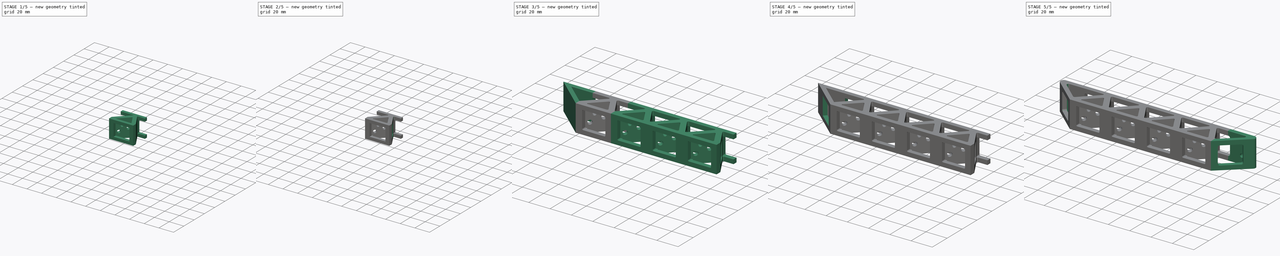
[diagram: build sequence overview — one tinted view per stage of 5, left to right]
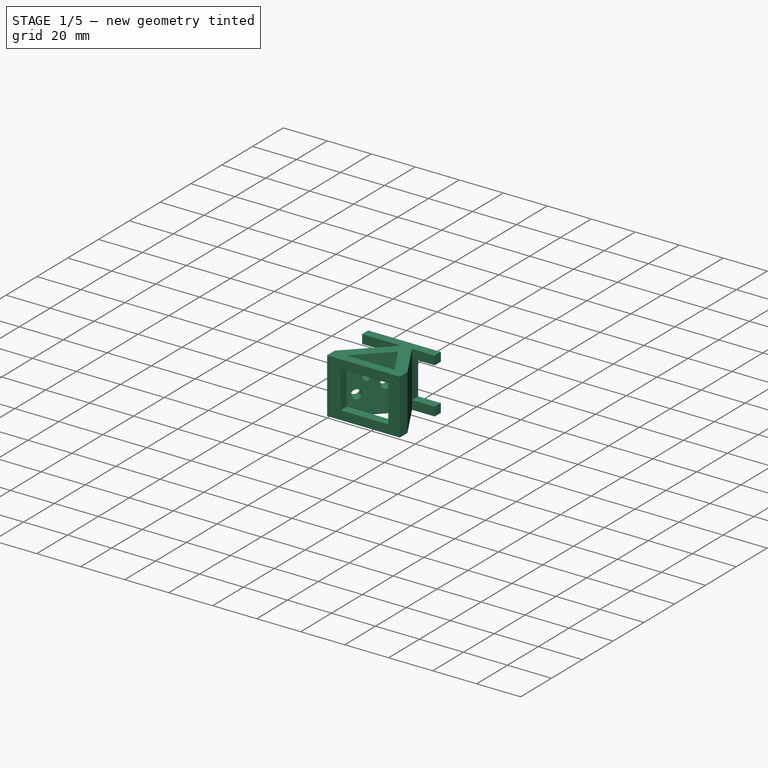
[diagram: stage 1 of 5 — iso view after this stage's code; geometry added in this stage tinted green]
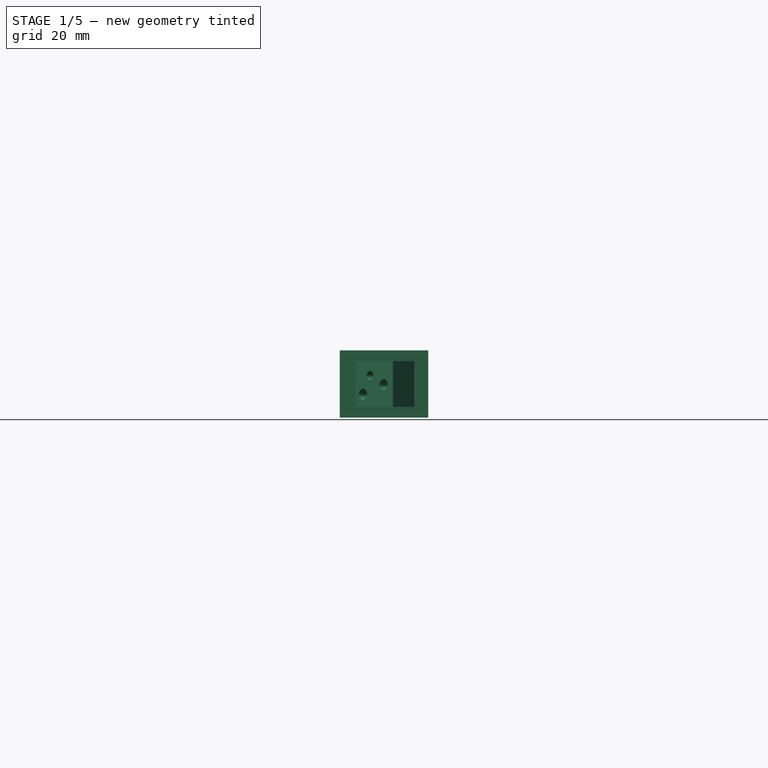
[diagram: stage 1 of 5 — front view after this stage's code; geometry added in this stage tinted green]
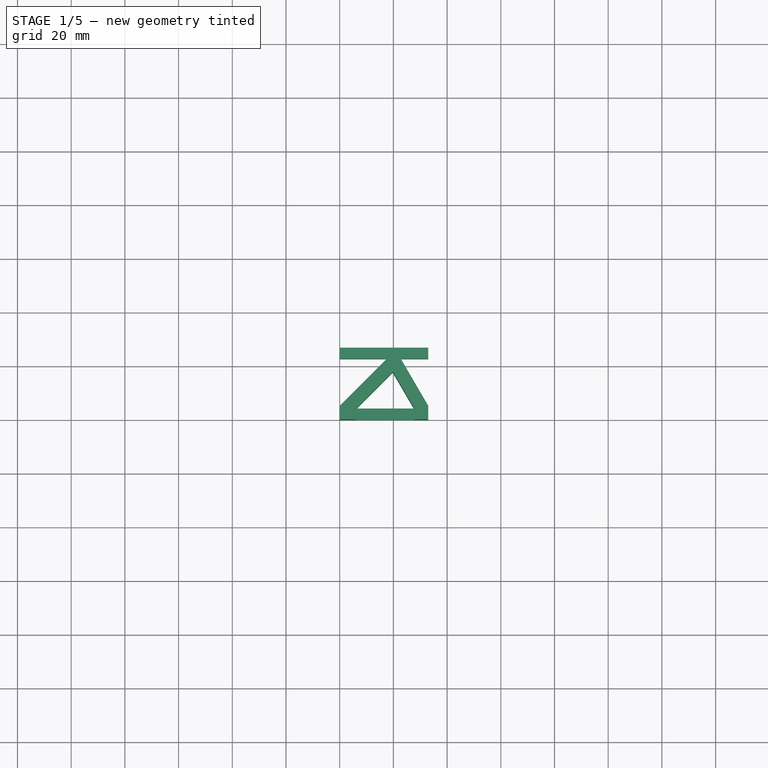
[diagram: stage 1 of 5 — top view after this stage's code; geometry added in this stage tinted green]
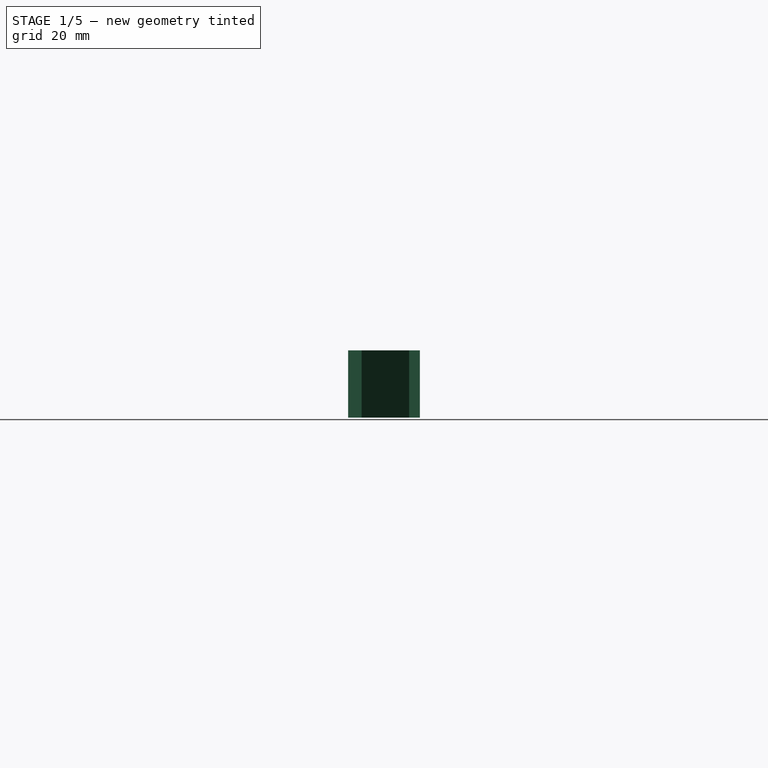
[diagram: stage 1 of 5 — right view after this stage's code; geometry added in this stage tinted green]
FCSTD DOCUMENT  (FreeCAD 0.19R)
Label: hori_stem
License: All rights reserved
LicenseURL: http://en.wikipedia.org/wiki/All_rights_reserved
objects: Sketcher::SketchObject×12, PartDesign::Pocket×6, PartDesign::Pad×5, PartDesign::Fillet×5, PartDesign::Hole×2, PartDesign::Chamfer×2, PartDesign::LinearPattern×2, PartDesign::Plane×1, PartDesign::Mirrored×1, PartDesign::Body×1
note: 57 computed .brp shape members not serialized (recipe doc carries the construction recipe); baked Part::Feature solids carry a one-line shape summary decoded from their .brp

FEATURE [Sketcher::SketchObject] Sketch  label="connector_base_sk"
  FullyConstrained = true
  MapMode = 5
  Support = -> [XY_Plane]
  sketch-geometry (13):
    g0: LineSegment StartX=0 StartY=5 StartZ=0 EndX=17.6777 EndY=22.6777 EndZ=0
    g1: LineSegment StartX=22.6777 StartY=22.6777 StartZ=0 EndX=33 EndY=5 EndZ=0
    g2: LineSegment StartX=6.07107 StartY=4 StartZ=0 EndX=19.7857 EndY=17.7146 EndZ=0
    g3: LineSegment StartX=19.7857 StartY=17.7146 StartZ=0 EndX=27.7939 EndY=4 EndZ=0
    g4: LineSegment StartX=33 StartY=0 StartZ=0 EndX=33 EndY=5 EndZ=0
    g5: LineSegment StartX=0 StartY=5 StartZ=0 EndX=0 EndY=0 EndZ=0
    g6: LineSegment StartX=6.07107 StartY=4 StartZ=0 EndX=27.7939 EndY=4 EndZ=0
    g7: LineSegment StartX=33 StartY=0 StartZ=0 EndX=0 EndY=0 EndZ=0
    g8: LineSegment StartX=0 StartY=26.6777 StartZ=0 EndX=33 EndY=26.6777 EndZ=0
    g9: LineSegment StartX=33 StartY=26.6777 StartZ=0 EndX=33 EndY=22.6777 EndZ=0
    g10: LineSegment StartX=33 StartY=22.6777 StartZ=0 EndX=22.6777 EndY=22.6777 EndZ=0
    g11: LineSegment StartX=0 StartY=22.6777 StartZ=0 EndX=0 EndY=26.6777 EndZ=0
    g12: LineSegment StartX=17.6777 StartY=22.6777 StartZ=0 EndX=0 EndY=22.6777 EndZ=0
  constraints (38):
    c: PointOnObject(g5,g-2)
    c: Coincident(g3,g2)
    c: Coincident(g5,g0)
    c: Vertical(g4)
    c: Parallel(g2,g0)
    c: Parallel(g3,g1)
    c: Vertical(g5)
    c: PointOnObject(g4,g-1)
    c: PointOnObject(g5,g-1)
    c: Coincident(g4,g1)
    c: Angle(g-1,g2) = 0.785398
    c: DistanceX(g5,g4) = 33
    c: Horizontal(g1,g0)
    c: Horizontal(g6)
    c: Coincident(g7,g4)
    c: Coincident(g7,g5)
    c: Distance(g6,g7) = 4
    c: Coincident(g3,g6)
    c: Coincident(g2,g6)
    c: Distance(g2,g0) = 5
    c: Distance(g3,g1) = 5
    c: Distance(g5) = 5
    c: Coincident(g8,g9)
    c: Coincident(g9,g10)
    c: Coincident(g12,g11)
    c: Coincident(g11,g8)
    c: Horizontal(g8)
    c: Horizontal(g10)
    c: Vertical(g9)
    c: Vertical(g11)
    c: PointOnObject(g8,g-2)
    c: Distance(g11) = 4
    c: Vertical(g9,g1)
    c: Distance(g0) = 25
    c: Coincident(g10,g1)
    c: Coincident(g12,g0)
    c: Tangent(g10,g12)
    c: Distance(g1,g0) = 5
FEATURE [PartDesign::Pad] Pad  label="connector_base"
  Direction = (1,1,1)
  Length = 25
  Length2 = 17
  Midplane = true
  Profile = -> Sketch
  Type = 0
FEATURE [Sketcher::SketchObject] Sketch007  label="back_stiffener_sk"
  ExternalGeometry = -> [Pad]
  FullyConstrained = true
  MapMode = 5
  Placement = pos=(0,4,0) rot=(0,0.707107,0.707107;3.14159rad)
  Support = -> [Pad]
  sketch-geometry (4):
    g0: LineSegment StartX=-6.07107 StartY=8.5 StartZ=0 EndX=-27.7939 EndY=8.5 EndZ=0
    g1: LineSegment StartX=-27.7939 StartY=8.5 StartZ=0 EndX=-27.7939 EndY=-8.5 EndZ=0
    g2: LineSegment StartX=-27.7939 StartY=-8.5 StartZ=0 EndX=-6.07107 EndY=-8.5 EndZ=0
    g3: LineSegment StartX=-6.07107 StartY=-8.5 StartZ=0 EndX=-6.07107 EndY=8.5 EndZ=0
  constraints (12):
    c: Coincident(g0,g1)
    c: Coincident(g1,g2)
    c: Coincident(g2,g3)
    c: Coincident(g3,g0)
    c: Horizontal(g0)
    c: Horizontal(g2)
    c: Vertical(g1)
    c: Vertical(g3)
    c: PointOnObject(g0,g-4)
    c: PointOnObject(g1,g-3)
    c: Distance(g-3,g2) = 4
    c: Distance(g-4,g0) = 4
FEATURE [PartDesign::Pocket] Pocket002  label="back_stiffener"
  BaseFeature = -> Pad
  Length = 5
  Length2 = 100
  Profile = -> Sketch007
  Type = 2
FEATURE [Sketcher::SketchObject] Sketch008  label="front_stiffener_sk"
  ExternalGeometry = -> [Pocket002]
  FullyConstrained = true
  MapMode = 5
  Placement = pos=(0,22.6777,0) rot=(1,0,0;1.5708rad)
  Support = -> [Pocket002]
  sketch-geometry (8):
    g0: LineSegment StartX=0 StartY=8.5 StartZ=0 EndX=17.6777 EndY=8.5 EndZ=0
    g1: LineSegment StartX=17.6777 StartY=8.5 StartZ=0 EndX=17.6777 EndY=-8.5 EndZ=0
    g2: LineSegment StartX=17.6777 StartY=-8.5 StartZ=0 EndX=0 EndY=-8.5 EndZ=0
    g3: LineSegment StartX=0 StartY=-8.5 StartZ=0 EndX=0 EndY=8.5 EndZ=0
    g4: LineSegment StartX=22.6777 StartY=-8.5 StartZ=0 EndX=33 EndY=-8.5 EndZ=0
    g5: LineSegment StartX=33 StartY=-8.5 StartZ=0 EndX=33 EndY=8.5 EndZ=0
    g6: LineSegment StartX=33 StartY=8.5 StartZ=0 EndX=22.6777 EndY=8.5 EndZ=0
    g7: LineSegment StartX=22.6777 StartY=8.5 StartZ=0 EndX=22.6777 EndY=-8.5 EndZ=0
  constraints (24):
    c: Coincident(g0,g1)
    c: Coincident(g1,g2)
    c: Coincident(g2,g3)
    c: Coincident(g3,g0)
    c: Horizontal(g0)
    c: Horizontal(g2)
    c: Vertical(g1)
    c: Vertical(g3)
    c: PointOnObject(g0,g-6)
    c: PointOnObject(g1,g-5)
    c: Coincident(g4,g5)
    c: Coincident(g5,g6)
    c: Coincident(g6,g7)
    c: Coincident(g7,g4)
    c: Horizontal(g4)
    c: Horizontal(g6)
    c: Vertical(g5)
    c: Vertical(g7)
    c: PointOnObject(g4,g-3)
    c: PointOnObject(g5,g-4)
    c: Distance(g-4,g6) = 4
    c: Distance(g-6,g2) = 4
    c: Horizontal(g1,g4)
    c: Horizontal(g0,g6)
FEATURE [PartDesign::Pocket] Pocket003  label="front_stiffener"
  BaseFeature = -> Pocket002
  Length = 5
  Length2 = 100
  Profile = -> Sketch008
  Type = 2
FEATURE [Sketcher::SketchObject] Sketch001  label="M3_hole_sk"
  ExternalGeometry = -> [Pad]
  FullyConstrained = true
  MapMode = 5
  Placement = pos=(-2.5,2.5,0) rot=(-0.281085,0.678598,0.678598;3.68962rad)
  Support = -> [Pocket003]
  sketch-geometry (1):
    g0: Circle CenterX=-14.5355 CenterY=3.2 CenterZ=0 NormalX=0 NormalY=0 NormalZ=1 AngleXU=0 Radius=1
  constraints (3):
    c: Radius(g0) = 1
    c: Distance(g0,g-3) = 11
    c: Distance(g0,g-4) = 9.3
FEATURE [PartDesign::Hole] Hole  label="M3_hole"
  BaseFeature = -> Pocket003
  Depth = 25
  DepthType = 1
  Diameter = 3.4
  DrillForDepth = false
  DrillPoint = 1
  DrillPointAngle = 118
  HoleCutCountersinkAngle = 90
  HoleCutCustomValues = false
  HoleCutDepth = 0
  HoleCutDiameter = 6.1
  HoleCutType = 0
  ModelActualThread = false
  Profile = -> Sketch001
  Tapered = false
  TaperedAngle = 90
  ThreadAngle = 0
  ThreadClass = 0
  ThreadCutOffInner = 0
  ThreadCutOffOuter = 0
  ThreadDirection = 0
  ThreadFit = 0
  ThreadPitch = 0
  ThreadSize = 9
  ThreadType = 1
  Threaded = false
FEATURE [Sketcher::SketchObject] Sketch002  label="dual_dowel_hole_sk"
  ExternalGeometry = -> [Hole]
  FullyConstrained = true
  MapMode = 5
  Placement = pos=(-2.5,2.5,0) rot=(-0.281085,0.678598,0.678598;3.68962rad)
  Support = -> [Hole]
  sketch-geometry (2):
    g0: Circle CenterX=-21.7355 CenterY=-0.3 CenterZ=0 NormalX=0 NormalY=0 NormalZ=1 AngleXU=0 Radius=2.1
    g1: Circle CenterX=-10.8355 CenterY=-3.8 CenterZ=0 NormalX=0 NormalY=0 NormalZ=1 AngleXU=0 Radius=2.1
  constraints (6):
    c: Radius(g0) = 2.1
    c: Equal(g1,g0)
    c: DistanceY(g0,g-3) = 3.5
    c: DistanceX(g0,g-3) = 7.2
    c: DistanceY(g1,g-3) = 7
    c: DistanceX(g-3,g1) = 3.7
FEATURE [PartDesign::Pocket] Pocket  label="dual_dowel_hole"
  BaseFeature = -> Hole
  Length = 7
  Length2 = 100
  Profile = -> Sketch002
  Type = 2
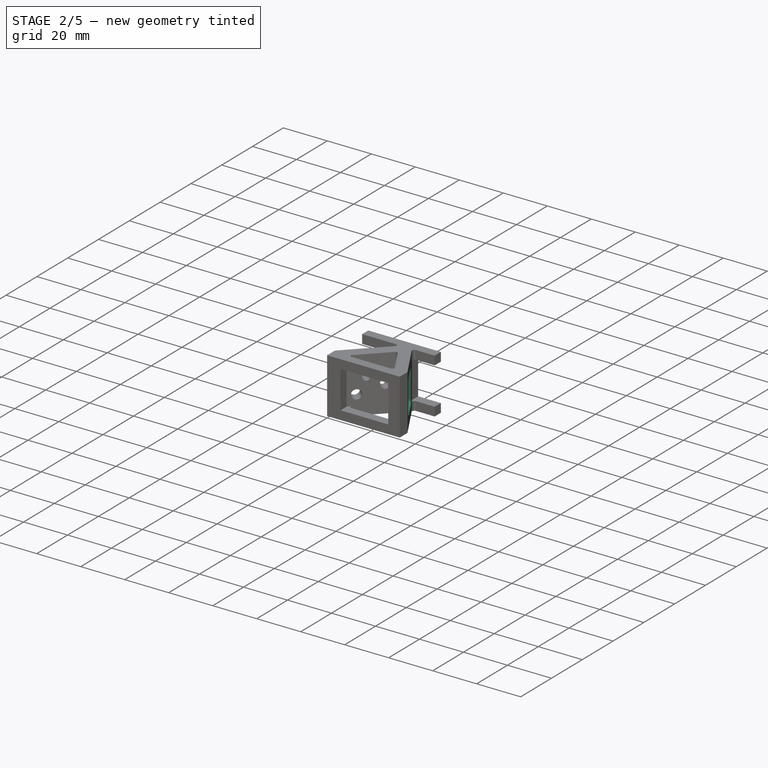
[diagram: stage 2 of 5 — iso view after this stage's code; geometry added in this stage tinted green]
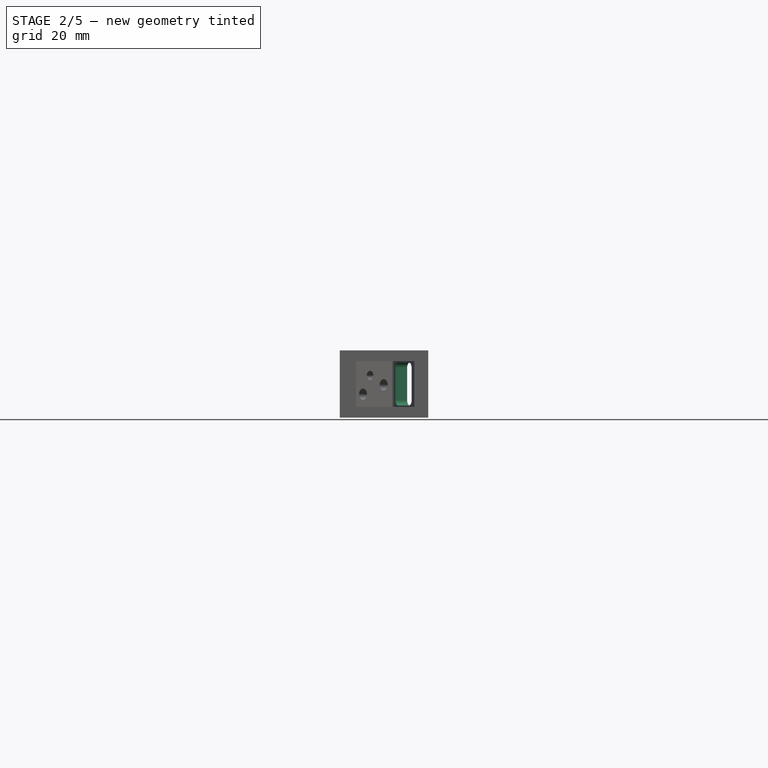
[diagram: stage 2 of 5 — front view after this stage's code; geometry added in this stage tinted green]
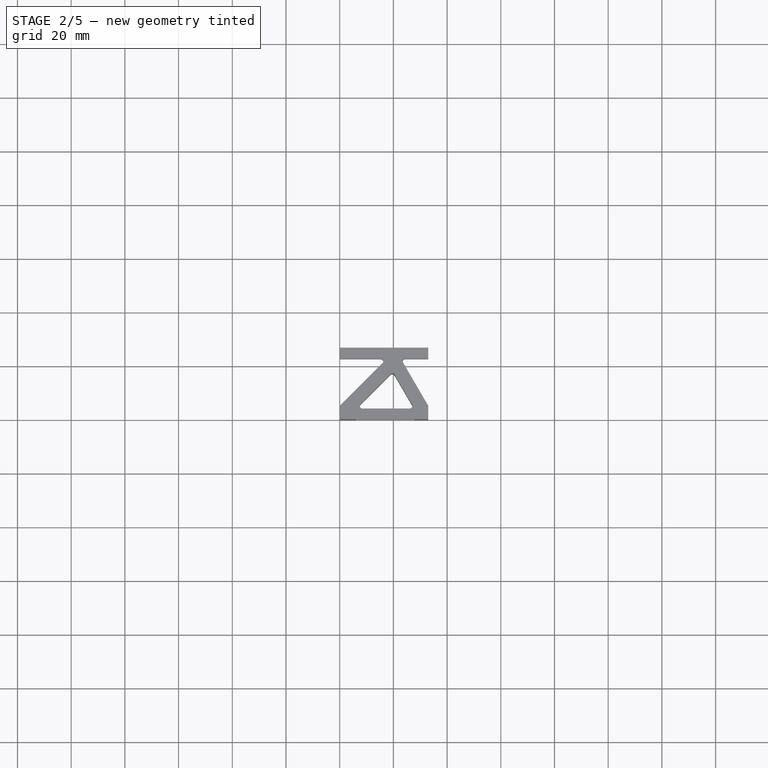
[diagram: stage 2 of 5 — top view after this stage's code; geometry added in this stage tinted green]
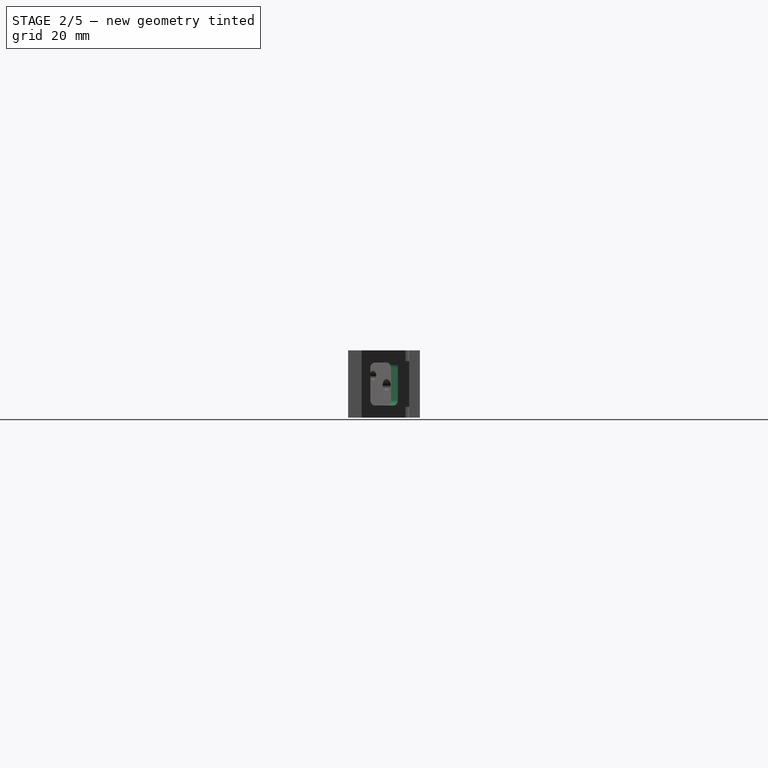
[diagram: stage 2 of 5 — right view after this stage's code; geometry added in this stage tinted green]
FEATURE [PartDesign::Chamfer] Chamfer  label="dowel_chamfer"
  Angle = 45
  Base = -> Pocket [Edge51,Edge50]
  BaseFeature = -> Pocket
  ChamferType = 0
  FlipDirection = false
  Size = 0.5
  Size2 = 1
  SupportTransform = false
FEATURE [Sketcher::SketchObject] Sketch005  label="finger_hole_sk"
  ExternalGeometry = -> [Chamfer]
  FullyConstrained = true
  MapMode = 5
  Placement = pos=(22.4687,13.1199,0) rot=(0.776353,-0.445688,-0.445688;1.82128rad)
  Support = -> [Chamfer]
  sketch-geometry (4):
    g0: LineSegment StartX=-3.32071 StartY=8 StartZ=0 EndX=8.56081 EndY=8 EndZ=0
    g1: LineSegment StartX=8.56081 StartY=8 StartZ=0 EndX=8.56081 EndY=-8 EndZ=0
    g2: LineSegment StartX=8.56081 StartY=-8 StartZ=0 EndX=-3.32071 EndY=-8 EndZ=0
    g3: LineSegment StartX=-3.32071 StartY=-8 StartZ=0 EndX=-3.32071 EndY=8 EndZ=0
  constraints (12):
    c: Coincident(g0,g1)
    c: Coincident(g1,g2)
    c: Coincident(g2,g3)
    c: Coincident(g3,g0)
    c: Horizontal(g0)
    c: Horizontal(g2)
    c: Vertical(g1)
    c: Vertical(g3)
    c: Distance(g2,g-3) = 2
    c: DistanceX(g0,g-4) = 2
    c: DistanceY(g0,g-4) = 0.5
    c: DistanceY(g-5,g1) = 0.5
FEATURE [PartDesign::Pocket] Pocket001  label="finger_hole"
  BaseFeature = -> Chamfer
  Length = 0
  Length2 = 100
  Profile = -> Sketch005
  Type = 2
FEATURE [PartDesign::Fillet] Fillet  label="finger_hole_fillet"
  Base = -> Pocket001 [Edge104,Edge102,Edge101,Edge103]
  BaseFeature = -> Pocket001
  Radius = 2
  SupportTransform = false
FEATURE [PartDesign::Fillet] Fillet001  label="frame_fillet"
  Base = -> Fillet [Edge63,Edge78,Edge77,Edge13,Edge9,Edge95,Edge93,Edge65,Edge64]
  BaseFeature = -> Fillet
  Radius = 1
  SupportTransform = false
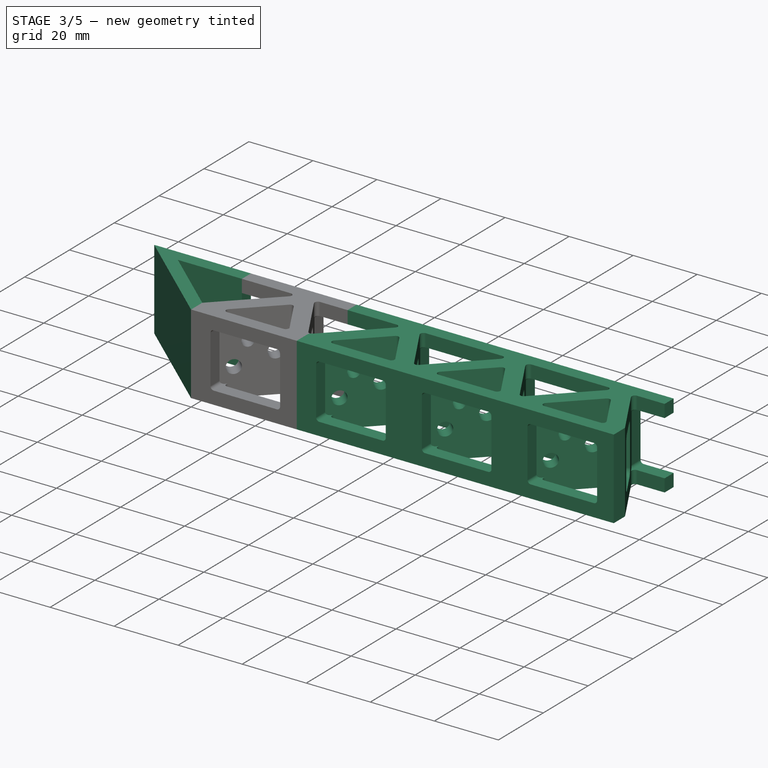
[diagram: stage 3 of 5 — iso view after this stage's code; geometry added in this stage tinted green]
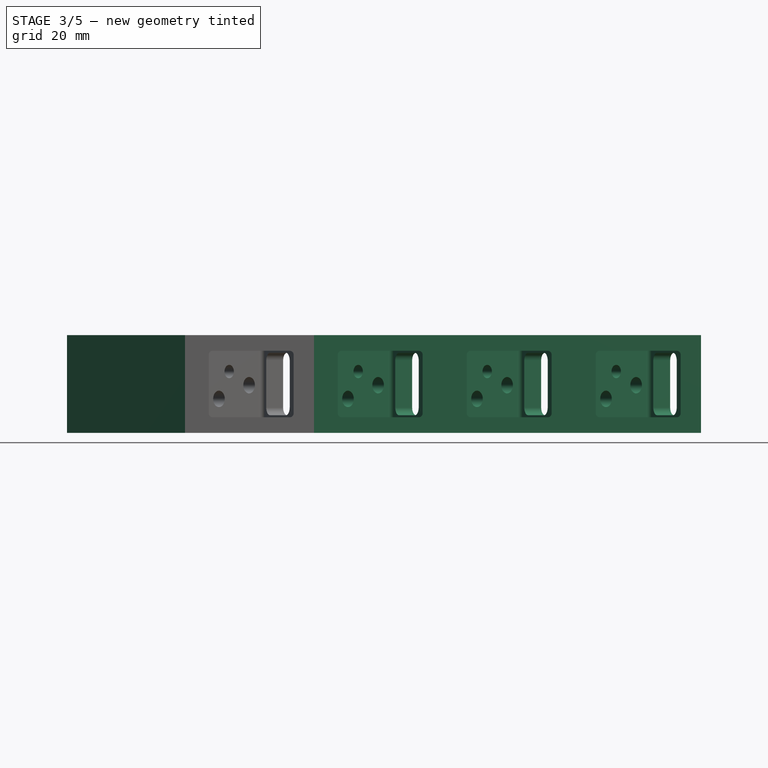
[diagram: stage 3 of 5 — front view after this stage's code; geometry added in this stage tinted green]
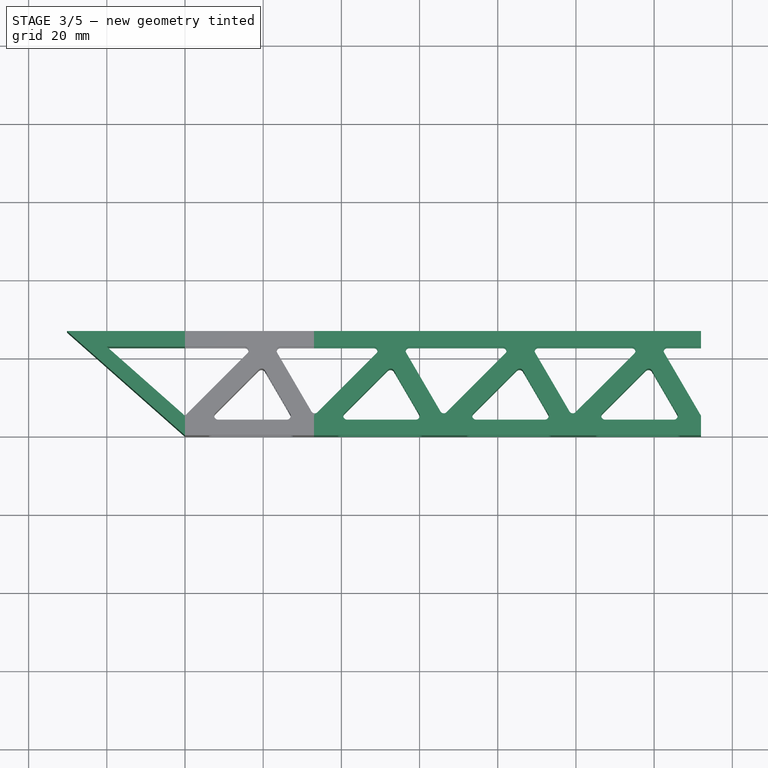
[diagram: stage 3 of 5 — top view after this stage's code; geometry added in this stage tinted green]
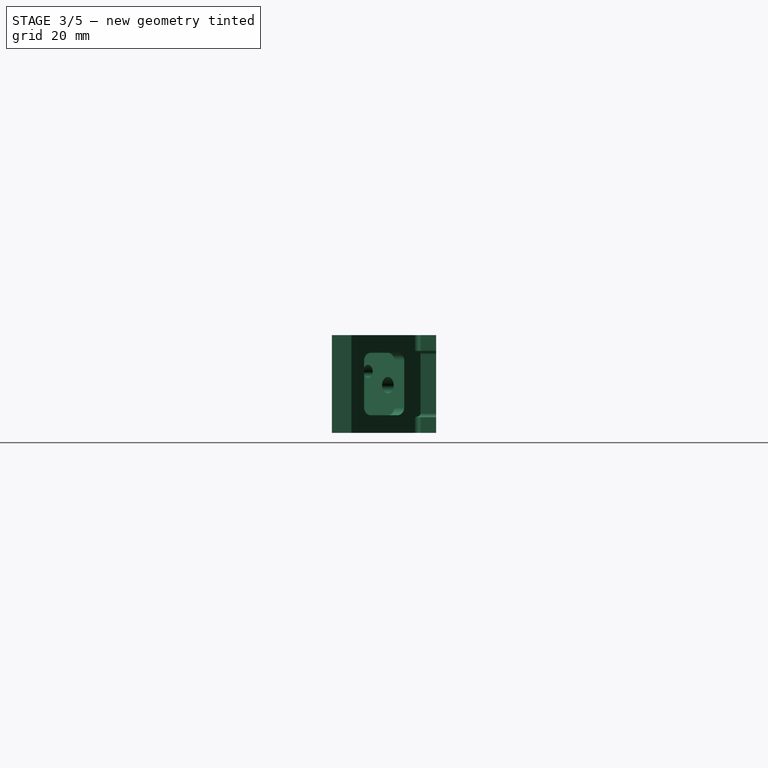
[diagram: stage 3 of 5 — right view after this stage's code; geometry added in this stage tinted green]
FEATURE [PartDesign::Fillet] Fillet002  label="frame_fillet2"
  Base = -> Fillet001 [Edge147,Edge149,Edge148,Edge146,Edge41,Edge59,Edge140,Edge139]
  BaseFeature = -> Fillet001
  Radius = 1
  SupportTransform = false
FEATURE [PartDesign::LinearPattern] LinearPattern  label="quad_connector"
  BaseFeature = -> Fillet002
  Direction = -> X_Axis
  Length = 99
  Occurrences = 4
  Originals = -> [Pad,Pocket002,Pocket003,Hole,Pocket,Chamfer,Pocket001,Fillet,Fillet001,Fillet002]
FEATURE [Sketcher::SketchObject] Sketch009  label="additive_fillet_sk"
  ExternalGeometry = -> [LinearPattern]
  FullyConstrained = true
  MapMode = 5
  Placement = pos=(0,0,12.5) rot=(0,0,1;0rad)
  Support = -> [LinearPattern]
  sketch-geometry (3):
    g0: LineSegment StartX=33 StartY=5 StartZ=0 EndX=32.3462 EndY=6.11971 EndZ=0
    g1: LineSegment StartX=33 StartY=5 StartZ=0 EndX=33.9168 EndY=5.91685 EndZ=0
    g2: ArcOfCircle CenterX=33.2097 CenterY=6.62395 CenterZ=0 NormalX=0 NormalY=0 NormalZ=1 AngleXU=0 Radius=1 StartAngle=3.6701 EndAngle=5.49779
  constraints (7):
    c: Coincident(g0,g-3)
    c: PointOnObject(g0,g-3)
    c: Coincident(g1,g0)
    c: Tangent(g2,g1) = -1.5708
    c: Tangent(g2,g0) = 1.5708
    c: Parallel(g1,g-4)
    c: Equal(g2,g-5)
FEATURE [PartDesign::Pad] Pad001  label="additive_fillet"
  BaseFeature = -> LinearPattern
  Direction = (1,1,1)
  Length = 10
  Length2 = 100
  Profile = -> Sketch009
  Reversed = true
  Type = 3
  UpToFace = -> LinearPattern [Face4]
FEATURE [PartDesign::LinearPattern] LinearPattern001  label="triple_additive_fillet"
  BaseFeature = -> Pad001
  Direction = -> X_Axis
  Length = 66
  Occurrences = 3
  Originals = -> [Pad001]
FEATURE [Sketcher::SketchObject] Sketch010  label="rack_connectorsk"
  ExternalGeometry = -> [LinearPattern001]
  FullyConstrained = true
  MapMode = 5
  Placement = pos=(0,0,-12.5) rot=(1,0,0;3.14159rad)
  Support = -> [LinearPattern001]
  sketch-geometry (6):
    g0: LineSegment StartX=0 StartY=-26.6777 StartZ=0 EndX=-30.1823 EndY=-26.6777 EndZ=0
    g1: LineSegment StartX=-30.1823 StartY=-26.6777 StartZ=0 EndX=0 EndY=0 EndZ=0
    g2: LineSegment StartX=0 StartY=0 StartZ=0 EndX=0 EndY=-5 EndZ=0
    g3: LineSegment StartX=0 StartY=-5 StartZ=0 EndX=-20 EndY=-22.6777 EndZ=0
    g4: LineSegment StartX=-20 StartY=-22.6777 StartZ=0 EndX=0 EndY=-22.6777 EndZ=0
    g5: LineSegment StartX=0 StartY=-22.6777 StartZ=0 EndX=0 EndY=-26.6777 EndZ=0
  constraints (14):
    c: Coincident(g0,g-3)
    c: Horizontal(g0)
    c: Coincident(g1,g-1)
    c: Coincident(g2,g1)
    c: Coincident(g2,g-4)
    c: Coincident(g3,g2)
    c: Coincident(g4,g3)
    c: Coincident(g4,g-3)
    c: Horizontal(g4)
    c: Coincident(g5,g4)
    c: Coincident(g5,g0)
    c: Distance(g4) = 20
    c: Parallel(g3,g1)
    c: Coincident(g1,g0)
FEATURE [PartDesign::Pad] Pad002  label="rack_connector"
  BaseFeature = -> LinearPattern001
  Direction = (1,1,1)
  Length = 10
  Length2 = 100
  Profile = -> Sketch010
  Reversed = true
  Type = 3
  UpToFace = -> LinearPattern001 [Face5]
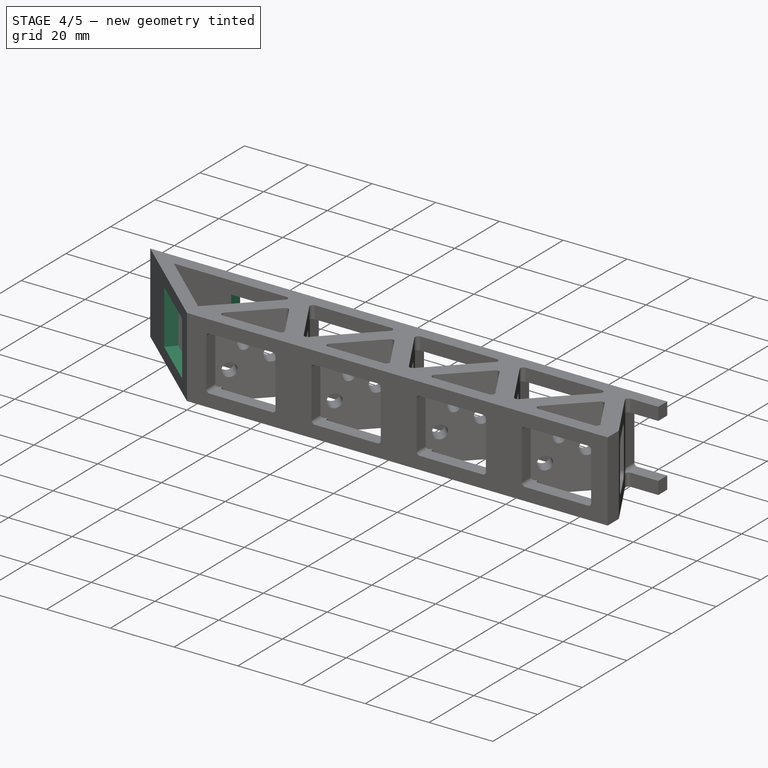
[diagram: stage 4 of 5 — iso view after this stage's code; geometry added in this stage tinted green]
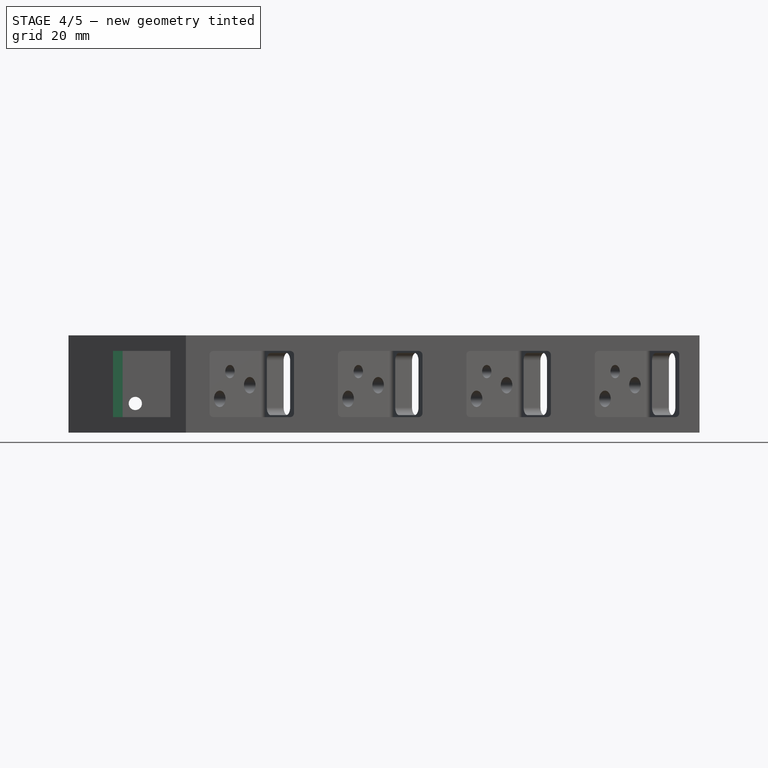
[diagram: stage 4 of 5 — front view after this stage's code; geometry added in this stage tinted green]
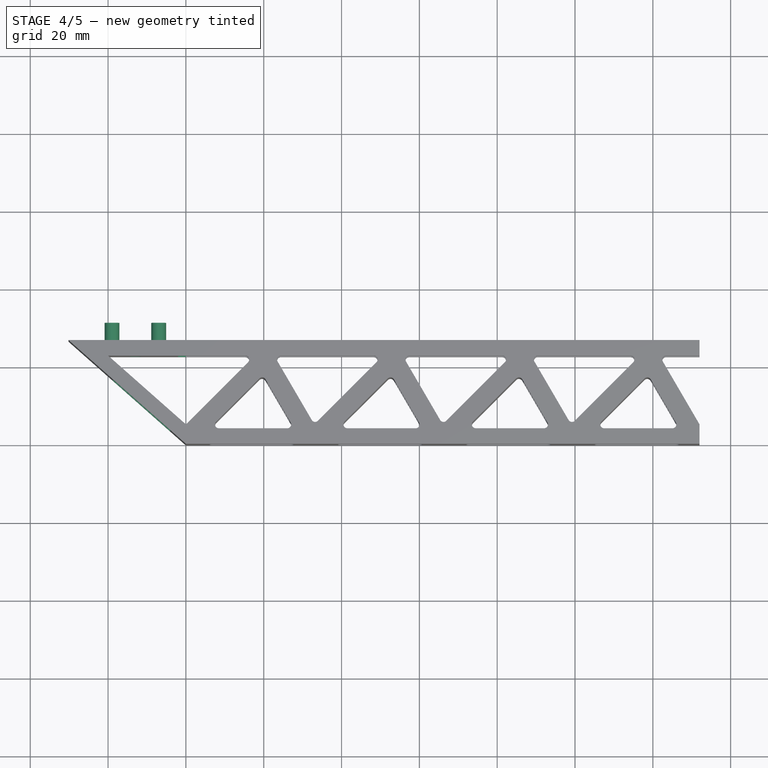
[diagram: stage 4 of 5 — top view after this stage's code; geometry added in this stage tinted green]
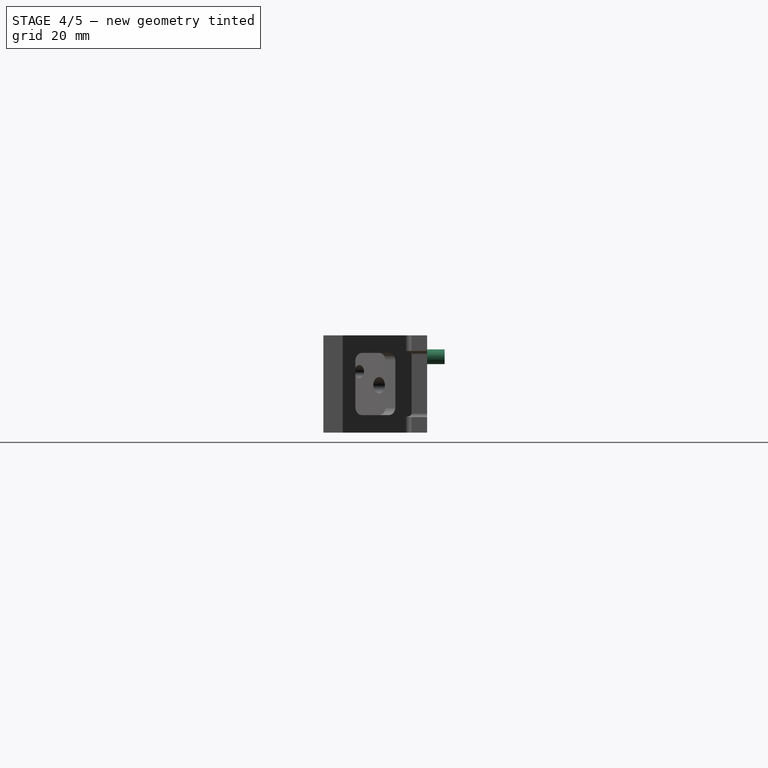
[diagram: stage 4 of 5 — right view after this stage's code; geometry added in this stage tinted green]
FEATURE [Sketcher::SketchObject] Sketch011  label="lightening_hole_sk"
  ExternalGeometry = -> [Pad002]
  FullyConstrained = true
  MapMode = 5
  Placement = pos=(2.48108,2.80702,0) rot=(0.258602,0.683054,0.683054;2.63548rad)
  Support = -> [Pad002]
  sketch-geometry (4):
    g0: LineSegment StartX=5.31133 StartY=8.5 StartZ=0 EndX=25.004 EndY=8.5 EndZ=0
    g1: LineSegment StartX=25.004 StartY=8.5 StartZ=0 EndX=25.004 EndY=-8.5 EndZ=0
    g2: LineSegment StartX=25.004 StartY=-8.5 StartZ=0 EndX=5.31133 EndY=-8.5 EndZ=0
    g3: LineSegment StartX=5.31133 StartY=-8.5 StartZ=0 EndX=5.31133 EndY=8.5 EndZ=0
  constraints (12):
    c: Coincident(g0,g1)
    c: Coincident(g1,g2)
    c: Coincident(g2,g3)
    c: Coincident(g3,g0)
    c: Horizontal(g0)
    c: Horizontal(g2)
    c: Vertical(g1)
    c: Vertical(g3)
    c: DistanceX(g-4,g0) = 2
    c: DistanceY(g0,g-4) = 4
    c: DistanceX(g1,g-3) = 5
    c: DistanceY(g-3,g1) = 4
FEATURE [PartDesign::Pocket] Pocket004  label="lightening_hole"
  BaseFeature = -> Pad002
  Length = 5
  Length2 = 100
  Profile = -> Sketch011
  Type = 2
FEATURE [PartDesign::Pocket] Pocket005  label="hole_extent"
  BaseFeature = -> Pocket004
  Length = 2
  Length2 = 100
  Profile = -> Pocket004 [Face104]
  Type = 0
FEATURE [PartDesign::Plane] DatumPlane  label="mid_plane"
  Length = 66.7774
  MapMode = 13
  Placement = pos=(66,16.4518,-5.5) rot=(0.57735,-0.57735,-0.57735;2.0944rad)
  ResizeMode = 0
  Support = -> [Pocket005]
  Width = 60.5998
FEATURE [Sketcher::SketchObject] Sketch012  label="end_M3_hole_sk"
  FullyConstrained = true
  MapMode = 5
  Placement = pos=(0,26.6777,0) rot=(0,0.707107,0.707107;3.14159rad)
  Support = -> [Pocket005]
  sketch-geometry (1):
    g0: Circle CenterX=13 CenterY=-5 CenterZ=0 NormalX=0 NormalY=0 NormalZ=1 AngleXU=0 Radius=1
  constraints (3):
    c: DistanceY(g0) = -5
    c: DistanceX(g0) = 13
    c: Radius(g0) = 1
FEATURE [PartDesign::Hole] Hole001  label="end_M3_hole"
  BaseFeature = -> Pocket005
  Depth = 25
  DepthType = 1
  Diameter = 3.4
  DrillForDepth = false
  DrillPoint = 1
  DrillPointAngle = 118
  HoleCutCountersinkAngle = 90
  HoleCutCustomValues = false
  HoleCutDepth = 0
  HoleCutDiameter = 6.1
  HoleCutType = 0
  ModelActualThread = false
  Profile = -> Sketch012
  Tapered = false
  TaperedAngle = 90
  ThreadAngle = 0
  ThreadClass = 0
  ThreadCutOffInner = 0
  ThreadCutOffOuter = 0
  ThreadDirection = 0
  ThreadFit = 0
  ThreadPitch = 0
  ThreadSize = 9
  ThreadType = 1
  Threaded = false
FEATURE [Sketcher::SketchObject] Sketch013  label="end_dowel_pin_sk"
  FullyConstrained = true
  MapMode = 5
  Placement = pos=(0,26.6777,0) rot=(0,0.707107,0.707107;3.14159rad)
  Support = -> [Hole001]
  sketch-geometry (2):
    g0: Circle CenterX=7 CenterY=7 CenterZ=0 NormalX=0 NormalY=0 NormalZ=1 AngleXU=0 Radius=1.9
    g1: Circle CenterX=19 CenterY=7 CenterZ=0 NormalX=0 NormalY=0 NormalZ=1 AngleXU=0 Radius=1.9
  constraints (6):
    c: Horizontal(g0,g1)
    c: Radius(g0) = 1.9
    c: Equal(g0,g1)
    c: DistanceX(g0) = 7
    c: DistanceX(g0,g1) = 12
    c: DistanceY(g1) = 7
FEATURE [PartDesign::Pad] Pad003  label="end_dowel_pin"
  BaseFeature = -> Hole001
  Direction = (1,1,1)
  Length = 4.5
  Length2 = 100
  Profile = -> Sketch013
  Type = 0
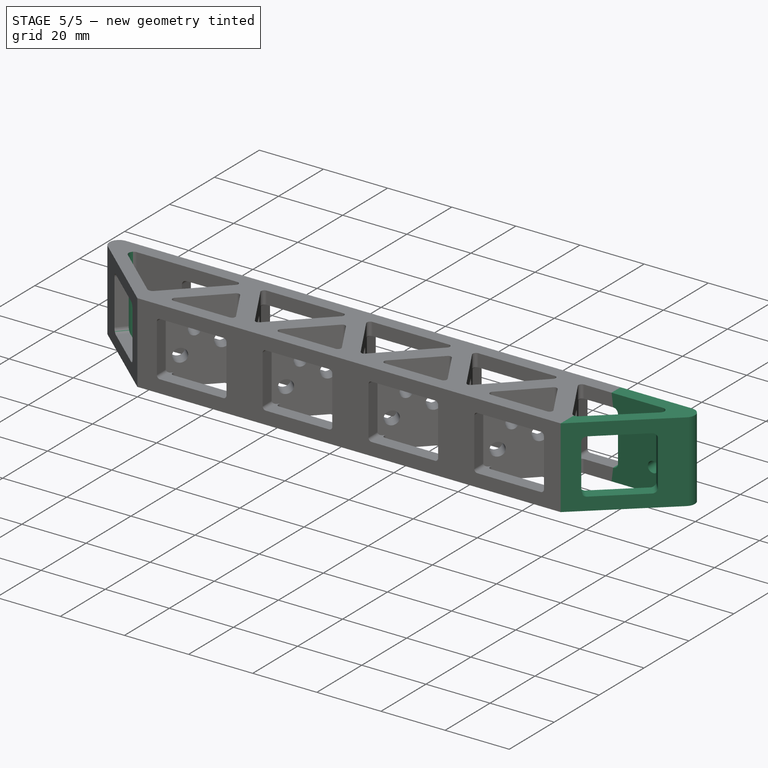
[diagram: stage 5 of 5 — iso view after this stage's code; geometry added in this stage tinted green]
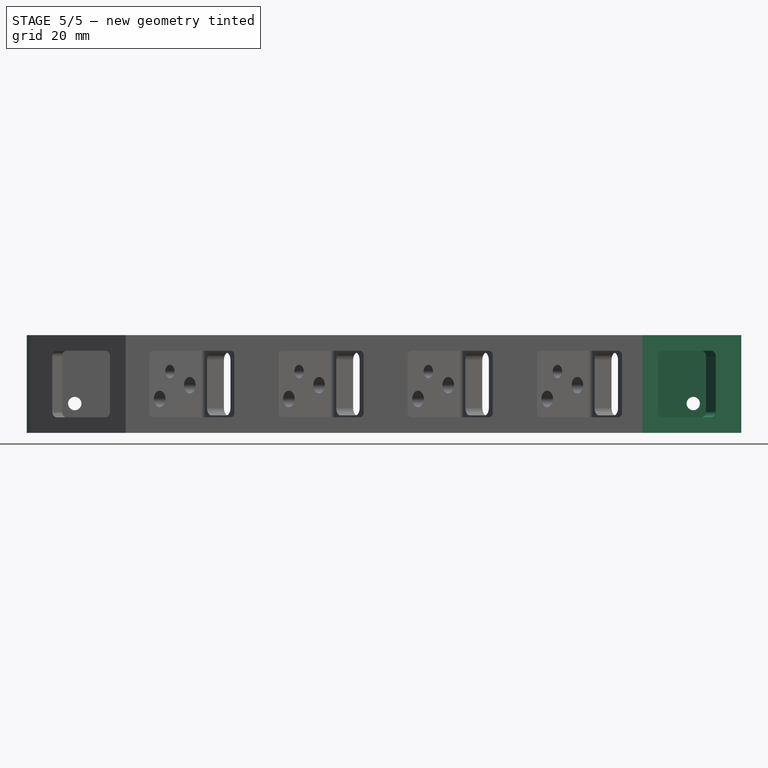
[diagram: stage 5 of 5 — front view after this stage's code; geometry added in this stage tinted green]
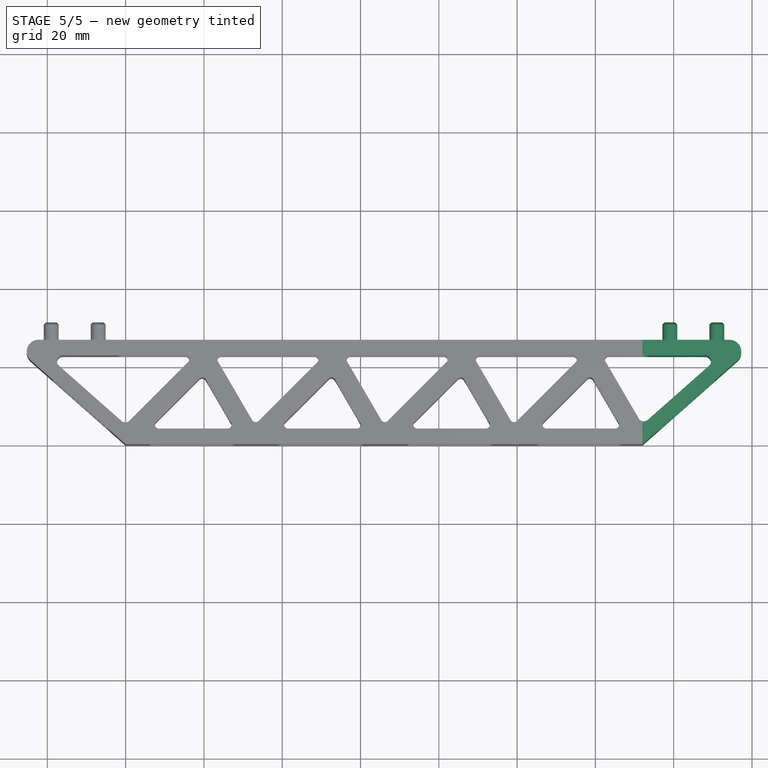
[diagram: stage 5 of 5 — top view after this stage's code; geometry added in this stage tinted green]
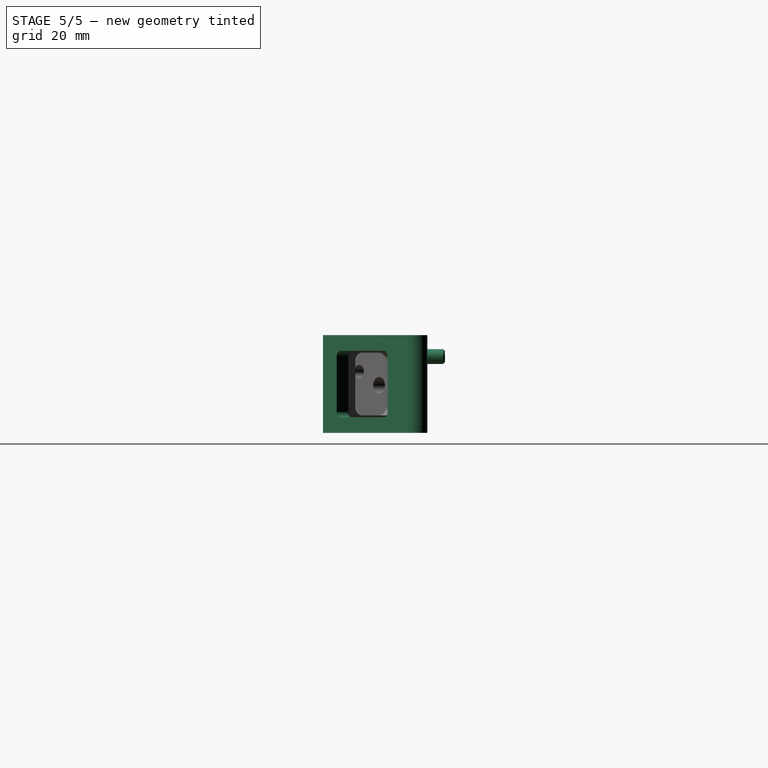
[diagram: stage 5 of 5 — right view after this stage's code; geometry added in this stage tinted green]
FEATURE [PartDesign::Chamfer] Chamfer001  label="dowel_pin_chamfer"
  Angle = 45
  Base = -> Pad003 [Edge443,Edge445]
  BaseFeature = -> Pad003
  ChamferType = 0
  FlipDirection = false
  Size = 0.5
  Size2 = 1
  SupportTransform = false
FEATURE [PartDesign::Fillet] Fillet003  label="end_wedge_fillet"
  Base = -> Chamfer001 [Edge8]
  BaseFeature = -> Chamfer001
  Radius = 3
  SupportTransform = false
FEATURE [PartDesign::Fillet] Fillet004  label="end_hole_fillet"
  Base = -> Fillet003 [Edge73,Edge231,Edge230,Edge229,Edge232,Edge42,Edge41]
  BaseFeature = -> Fillet003
  Radius = 1.5
  SupportTransform = false
FEATURE [PartDesign::Mirrored] Mirrored
  BaseFeature = -> Fillet004
  MirrorPlane = -> DatumPlane
  Originals = -> [Pad002,Pocket004,Pocket005,Hole001,Pad003,Chamfer001,Fillet003,Fillet004]
FEATURE [Sketcher::SketchObject] Sketch014  label="end_additive_fillet_sk"
  ExternalGeometry = -> [Mirrored]
  FullyConstrained = true
  MapMode = 5
  Placement = pos=(0,0,-12.5) rot=(1,0,0;3.14159rad)
  Support = -> [Mirrored]
  sketch-geometry (6):
    g0: LineSegment StartX=0 StartY=-5 StartZ=0 EndX=-1.05676 EndY=-5.93405 EndZ=0
    g1: LineSegment StartX=0 StartY=-5 StartZ=0 EndX=0.997297 EndY=-5.9973 EndZ=0
    g2: ArcOfCircle CenterX=-0.0633628 CenterY=-7.05796 CenterZ=0 NormalX=0 NormalY=0 NormalZ=1 AngleXU=0 Radius=1.5 StartAngle=0.785398 EndAngle=2.29464
    g3: LineSegment StartX=132 StartY=-5 StartZ=0 EndX=131.079 EndY=-6.57673 EndZ=0
    g4: LineSegment StartX=132 StartY=-5 StartZ=0 EndX=133.368 EndY=-6.2092 EndZ=0
    g5: ArcOfCircle CenterX=132.375 CenterY=-7.3331 CenterZ=0 NormalX=0 NormalY=0 NormalZ=1 AngleXU=0 Radius=1.5 StartAngle=0.846957 EndAngle=2.61308
  constraints (14):
    c: Coincident(g0,g-4)
    c: PointOnObject(g0,g-3)
    c: Coincident(g1,g0)
    c: PointOnObject(g1,g-4)
    c: Tangent(g2,g0) = -1.5708
    c: Tangent(g2,g1) = 1.5708
    c: Equal(g2,g-5)
    c: Coincident(g3,g-7)
    c: PointOnObject(g3,g-6)
    c: Coincident(g4,g3)
    c: PointOnObject(g4,g-7)
    c: Tangent(g5,g3) = -1.5708
    c: Tangent(g5,g4) = 1.5708
    c: Equal(g5,g-5)
FEATURE [PartDesign::Pad] Pad004  label="end_additive_fillet"
  BaseFeature = -> Mirrored
  Direction = (1,1,1)
  Length = 10
  Length2 = 100
  Profile = -> Sketch014
  Reversed = true
  Type = 3
  UpToFace = -> Mirrored [Face24]
FEATURE [PartDesign::Body] Body  label="body"
  Group = -> [Sketch,Pad,Pocket002,Pocket003,Sketch008,Sketch001,Hole,Sketch002,Pocket,Chamfer,Sketch005,Pocket001,Fillet,Sketch007,Fillet001,Fillet002,Sketch009,LinearPattern,Pad001,LinearPattern001,DatumPlane,Sketch010,Pad002,Sketch011,Pocket004,Pocket005,Sketch012,Hole001,Sketch013,Pad003,Chamfer001,Fillet003,Fillet004,Mirrored,Sketch014,Pad004]
  Origin = -> Origin
  Tip = -> Pad004
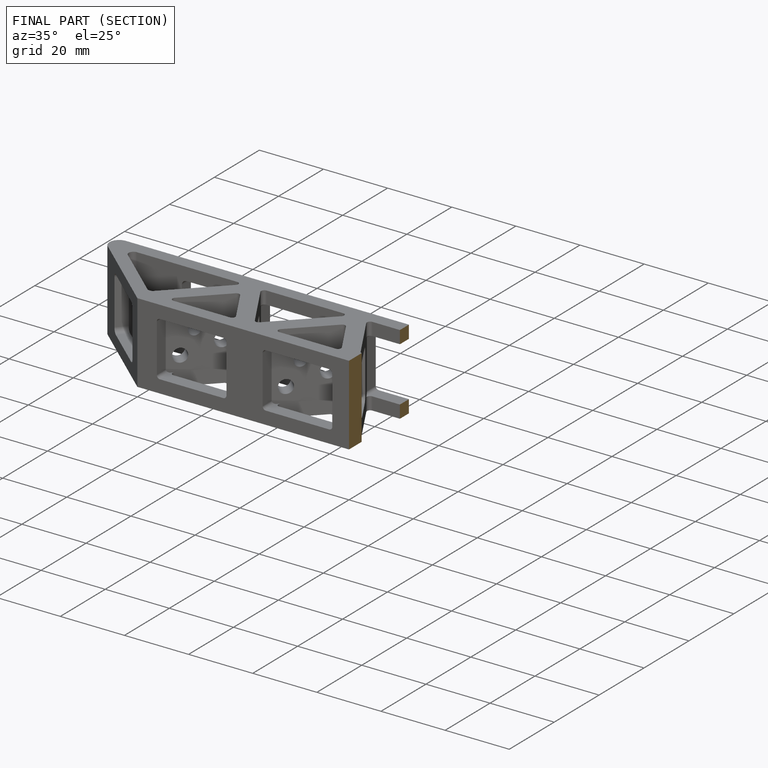
[diagram: finished part — half-section view (interior)]
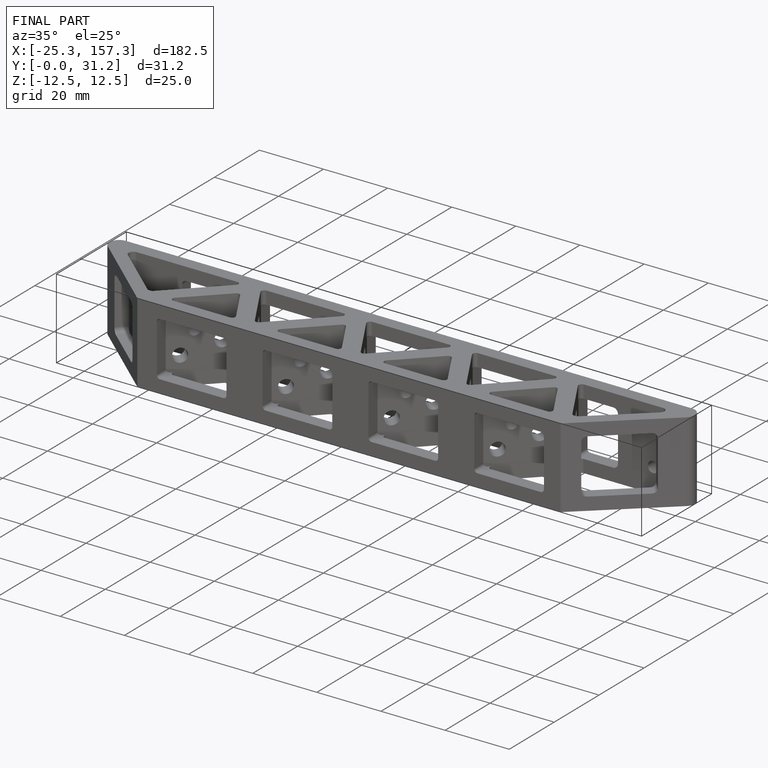
[diagram: finished part — iso view with bounding-box wireframe]
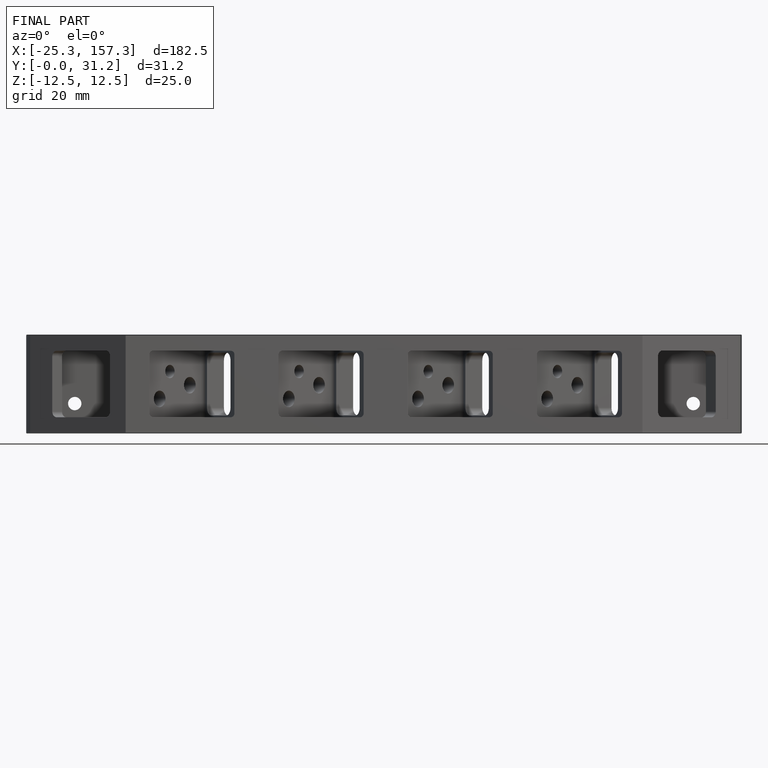
[diagram: finished part — front view with bounding-box wireframe]
